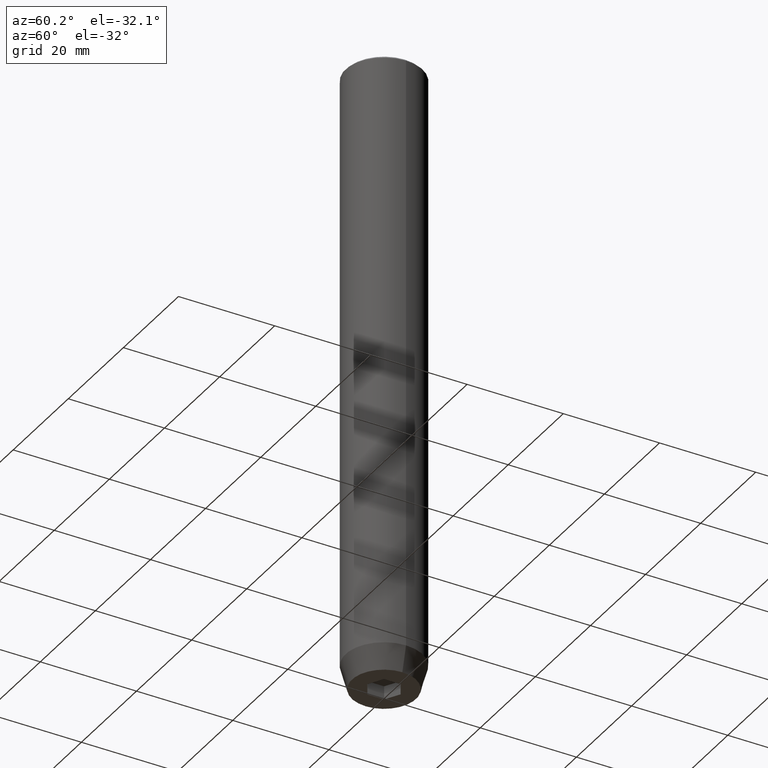
[diagram: clean part render]
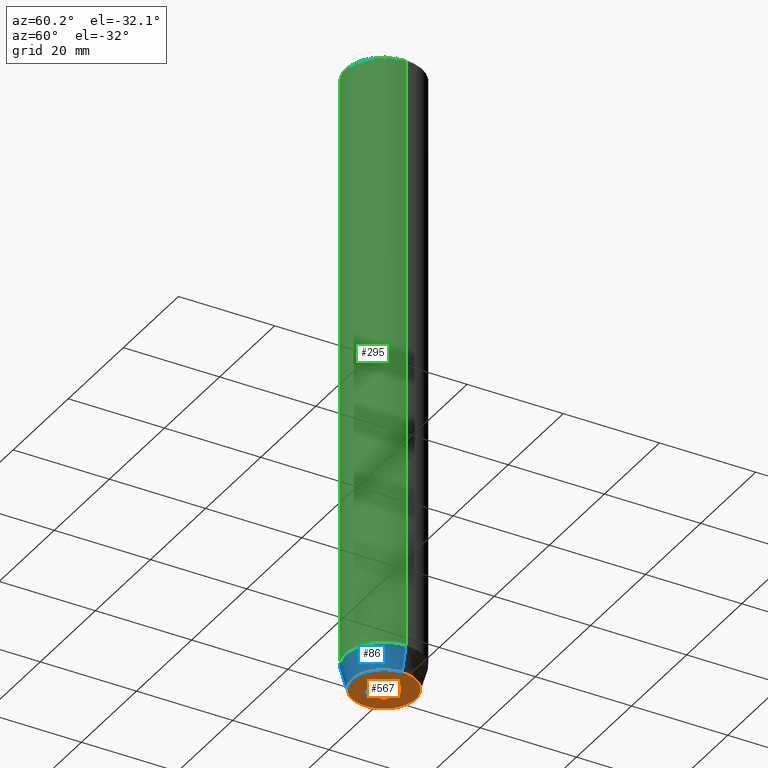
[diagram: same view with three faces highlighted in distinct colors, each labeled with its STEP entity id]
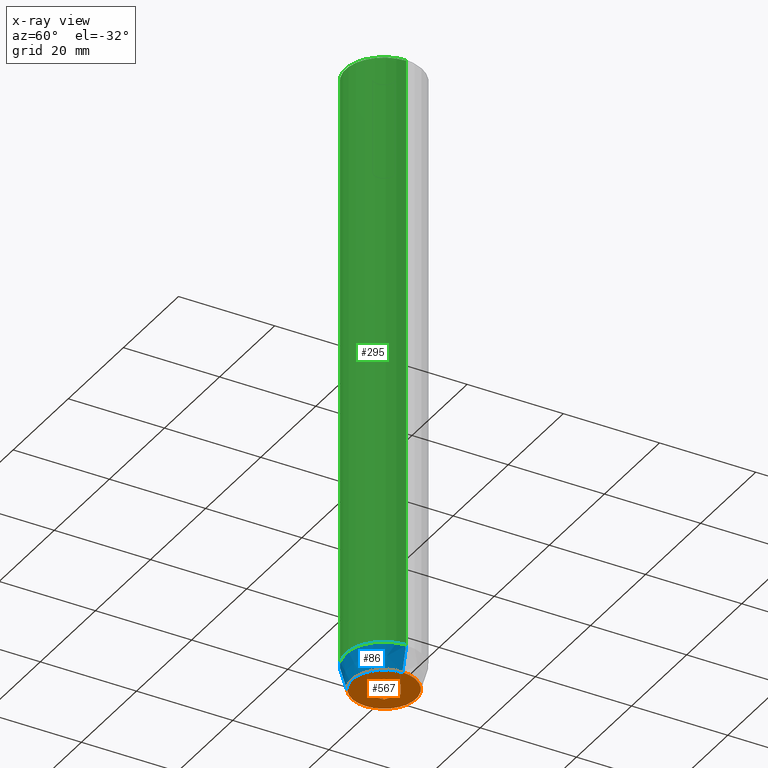
[diagram: x-ray of the same camera — body ghosted, the three highlighted faces saturated]
A machine part, auxiliary view with three faces highlighted in distinct colors.
The next image is the same camera in x-ray (body ghosted, the three faces saturated) — at least one of them is partly hidden behind the body in this view.
Their STEP definitions:

[orange] entity #567 — the highlighted planar face has unit normal (0, 0, -1).
#5 = CARTESIAN_POINT ( 'NONE',  ( 0.000000000000000000, 0.000000000000000000, -130.0000000000000000 ) ) ;
#14 = CARTESIAN_POINT ( 'NONE',  ( -1.499999999999999556, 2.598076211353316012, -130.0000000000000000 ) ) ;
#28 = EDGE_CURVE ( 'NONE', #218, #371, #66, .T. ) ;
#33 = CARTESIAN_POINT ( 'NONE',  ( 3.000000000000000000, 0.000000000000000000, -130.0000000000000000 ) ) ;
#34 = ORIENTED_EDGE ( 'NONE', *, *, #398, .F. ) ;
#43 = DIRECTION ( 'NONE',  ( 1.000000000000000000, 0.000000000000000000, 0.000000000000000000 ) ) ;
#56 = DIRECTION ( 'NONE',  ( -0.000000000000000000, -0.000000000000000000, 1.000000000000000000 ) ) ;
#61 = CARTESIAN_POINT ( 'NONE',  ( 3.000000000000000000, -1.732050807568876527, -130.0000000000000000 ) ) ;
#65 = FACE_OUTER_BOUND ( 'NONE', #581, .T. ) ;
#66 = LINE ( 'NONE', #231, #488 ) ;
#69 = VERTEX_POINT ( 'NONE', #446 ) ;
#75 = LINE ( 'NONE', #508, #500 ) ;
#87 = VECTOR ( 'NONE', #270, 999.9999999999998863 ) ;
#90 = DIRECTION ( 'NONE',  ( -0.8660254037844385966, 0.5000000000000001110, 0.000000000000000000 ) ) ;
#103 = DIRECTION ( 'NONE',  ( 1.000000000000000000, 0.000000000000000000, 0.000000000000000000 ) ) ;
#109 = ORIENTED_EDGE ( 'NONE', *, *, #329, .F. ) ;
#116 = EDGE_CURVE ( 'NONE', #179, #484, #321, .T. ) ;
#143 = CARTESIAN_POINT ( 'NONE',  ( -1.500000000000000666, -2.598076211353316456, -130.0000000000000000 ) ) ;
#144 = ORIENTED_EDGE ( 'NONE', *, *, #28, .F. ) ;
#150 = CARTESIAN_POINT ( 'NONE',  ( 0.000000000000000000, 6.660254037844381969, -130.0000000000000000 ) ) ;
#151 = ORIENTED_EDGE ( 'NONE', *, *, #116, .F. ) ;
#165 = AXIS2_PLACEMENT_3D ( 'NONE', #150, #441, #323 ) ;
#167 = CARTESIAN_POINT ( 'NONE',  ( 3.000000000000000000, 1.732050807568876527, -130.0000000000000000 ) ) ;
#173 = VERTEX_POINT ( 'NONE', #209 ) ;
#179 = VERTEX_POINT ( 'NONE', #167 ) ;
#181 = LINE ( 'NONE', #348, #254 ) ;
#189 = ORIENTED_EDGE ( 'NONE', *, *, #564, .F. ) ;
#191 = LINE ( 'NONE', #14, #87 ) ;
#201 = DIRECTION ( 'NONE',  ( 0.000000000000000000, -1.000000000000000000, 0.000000000000000000 ) ) ;
#209 = CARTESIAN_POINT ( 'NONE',  ( -2.168404344971008868E-16, -3.464101615137754830, -130.0000000000000000 ) ) ;
#218 = VERTEX_POINT ( 'NONE', #382 ) ;
#231 = CARTESIAN_POINT ( 'NONE',  ( -3.000000000000000444, -7.511572993685800087E-16, -130.0000000000000000 ) ) ;
#235 = CIRCLE ( 'NONE', #325, 6.660254037844381969 ) ;
#247 = DIRECTION ( 'NONE',  ( -0.8660254037844385966, -0.5000000000000001110, 0.000000000000000000 ) ) ;
#254 = VECTOR ( 'NONE', #260, 1000.000000000000000 ) ;
#260 = DIRECTION ( 'NONE',  ( 0.8660254037844385966, -0.5000000000000001110, 0.000000000000000000 ) ) ;
#270 = DIRECTION ( 'NONE',  ( 0.8660254037844387076, 0.4999999999999999445, 0.000000000000000000 ) ) ;
#273 = ORIENTED_EDGE ( 'NONE', *, *, #584, .F. ) ;
#279 = EDGE_LOOP ( 'NONE', ( #189, #144, #109, #273, #151, #34 ) ) ;
#289 = VERTEX_POINT ( 'NONE', #461 ) ;
#303 = EDGE_CURVE ( 'NONE', #69, #313, #517, .T. ) ;
#313 = VERTEX_POINT ( 'NONE', #582 ) ;
#321 = LINE ( 'NONE', #33, #390 ) ;
#323 = DIRECTION ( 'NONE',  ( -1.000000000000000000, 0.000000000000000000, -0.000000000000000000 ) ) ;
#325 = AXIS2_PLACEMENT_3D ( 'NONE', #5, #56, #103 ) ;
#329 = EDGE_CURVE ( 'NONE', #173, #218, #344, .T. ) ;
#344 = LINE ( 'NONE', #143, #489 ) ;
#345 = CARTESIAN_POINT ( 'NONE',  ( 0.000000000000000000, 0.000000000000000000, -130.0000000000000000 ) ) ;
#348 = CARTESIAN_POINT ( 'NONE',  ( 1.500000000000000222, 2.598076211353315568, -130.0000000000000000 ) ) ;
#350 = ORIENTED_EDGE ( 'NONE', *, *, #303, .F. ) ;
#364 = FACE_BOUND ( 'NONE', #279, .T. ) ;
#367 = PLANE ( 'NONE',  #165 ) ;
#368 = DIRECTION ( 'NONE',  ( -2.503857664561932376E-16, 1.000000000000000000, 0.000000000000000000 ) ) ;
#371 = VERTEX_POINT ( 'NONE', #473 ) ;
#375 = AXIS2_PLACEMENT_3D ( 'NONE', #345, #522, #43 ) ;
#382 = CARTESIAN_POINT ( 'NONE',  ( -3.000000000000000000, -1.732050807568877859, -130.0000000000000000 ) ) ;
#390 = VECTOR ( 'NONE', #201, 1000.000000000000000 ) ;
#398 = EDGE_CURVE ( 'NONE', #289, #179, #181, .T. ) ;
#441 = DIRECTION ( 'NONE',  ( 0.000000000000000000, 0.000000000000000000, -1.000000000000000000 ) ) ;
#446 = CARTESIAN_POINT ( 'NONE',  ( -6.660254037844381969, 8.976816591066591237E-16, -130.0000000000000000 ) ) ;
#461 = CARTESIAN_POINT ( 'NONE',  ( -2.168404344971008868E-16, 3.464101615137754830, -130.0000000000000000 ) ) ;
#473 = CARTESIAN_POINT ( 'NONE',  ( -3.000000000000000888, 1.732050807568876527, -130.0000000000000000 ) ) ;
#484 = VERTEX_POINT ( 'NONE', #61 ) ;
#488 = VECTOR ( 'NONE', #368, 1000.000000000000000 ) ;
#489 = VECTOR ( 'NONE', #90, 1000.000000000000000 ) ;
#500 = VECTOR ( 'NONE', #247, 1000.000000000000000 ) ;
#508 = CARTESIAN_POINT ( 'NONE',  ( 1.500000000000000222, -2.598076211353315568, -130.0000000000000000 ) ) ;
#511 = EDGE_CURVE ( 'NONE', #313, #69, #235, .T. ) ;
#517 = CIRCLE ( 'NONE', #375, 6.660254037844381969 ) ;
#522 = DIRECTION ( 'NONE',  ( -0.000000000000000000, -0.000000000000000000, 1.000000000000000000 ) ) ;
#533 = ORIENTED_EDGE ( 'NONE', *, *, #511, .F. ) ;
#564 = EDGE_CURVE ( 'NONE', #371, #289, #191, .T. ) ;
#567 = ADVANCED_FACE ( 'NONE', ( #364, #65 ), #367, .T. ) ;
#581 = EDGE_LOOP ( 'NONE', ( #533, #350 ) ) ;
#582 = CARTESIAN_POINT ( 'NONE',  ( 6.660254037844381969, 0.000000000000000000, -130.0000000000000000 ) ) ;
#584 = EDGE_CURVE ( 'NONE', #484, #173, #75, .T. ) ;

[blue] entity #86 — the highlighted conical surface has half-angle 15 deg.
#31 = CONICAL_SURFACE ( 'NONE', #131, 8.000000000000000000, 0.2617993877991500740 ) ;
#43 = DIRECTION ( 'NONE',  ( 1.000000000000000000, 0.000000000000000000, 0.000000000000000000 ) ) ;
#69 = VERTEX_POINT ( 'NONE', #446 ) ;
#79 = VECTOR ( 'NONE', #433, 1000.000000000000000 ) ;
#86 = ADVANCED_FACE ( 'NONE', ( #282 ), #31, .T. ) ;
#97 = EDGE_LOOP ( 'NONE', ( #531, #315, #528, #356 ) ) ;
#131 = AXIS2_PLACEMENT_3D ( 'NONE', #271, #194, #454 ) ;
#152 = VERTEX_POINT ( 'NONE', #555 ) ;
#183 = CARTESIAN_POINT ( 'NONE',  ( -8.000000000000000000, 9.797174393178825657E-16, -125.0000000000000000 ) ) ;
#193 = DIRECTION ( 'NONE',  ( 1.000000000000000000, 0.000000000000000000, 0.000000000000000000 ) ) ;
#194 = DIRECTION ( 'NONE',  ( -0.000000000000000000, -0.000000000000000000, 1.000000000000000000 ) ) ;
#206 = CIRCLE ( 'NONE', #525, 8.000000000000000000 ) ;
#257 = LINE ( 'NONE', #183, #79 ) ;
#271 = CARTESIAN_POINT ( 'NONE',  ( 0.000000000000000000, 0.000000000000000000, -125.0000000000000000 ) ) ;
#281 = CARTESIAN_POINT ( 'NONE',  ( 8.000000000000000000, 0.000000000000000000, -125.0000000000000000 ) ) ;
#282 = FACE_OUTER_BOUND ( 'NONE', #97, .T. ) ;
#303 = EDGE_CURVE ( 'NONE', #69, #313, #517, .T. ) ;
#313 = VERTEX_POINT ( 'NONE', #582 ) ;
#315 = ORIENTED_EDGE ( 'NONE', *, *, #303, .T. ) ;
#342 = EDGE_CURVE ( 'NONE', #69, #152, #257, .T. ) ;
#345 = CARTESIAN_POINT ( 'NONE',  ( 0.000000000000000000, 0.000000000000000000, -130.0000000000000000 ) ) ;
#356 = ORIENTED_EDGE ( 'NONE', *, *, #465, .F. ) ;
#375 = AXIS2_PLACEMENT_3D ( 'NONE', #345, #522, #43 ) ;
#407 = DIRECTION ( 'NONE',  ( -0.000000000000000000, -0.000000000000000000, 1.000000000000000000 ) ) ;
#411 = DIRECTION ( 'NONE',  ( 0.2588190451025213501, 0.000000000000000000, 0.9659258262890680902 ) ) ;
#433 = DIRECTION ( 'NONE',  ( -0.2588190451025213501, 3.169619151431772337E-17, 0.9659258262890680902 ) ) ;
#445 = LINE ( 'NONE', #453, #562 ) ;
#446 = CARTESIAN_POINT ( 'NONE',  ( -6.660254037844381969, 8.976816591066591237E-16, -130.0000000000000000 ) ) ;
#448 = CARTESIAN_POINT ( 'NONE',  ( 0.000000000000000000, 0.000000000000000000, -125.0000000000000000 ) ) ;
#453 = CARTESIAN_POINT ( 'NONE',  ( 8.000000000000000000, 0.000000000000000000, -125.0000000000000000 ) ) ;
#454 = DIRECTION ( 'NONE',  ( 1.000000000000000000, 0.000000000000000000, 0.000000000000000000 ) ) ;
#465 = EDGE_CURVE ( 'NONE', #152, #480, #206, .T. ) ;
#480 = VERTEX_POINT ( 'NONE', #281 ) ;
#517 = CIRCLE ( 'NONE', #375, 6.660254037844381969 ) ;
#522 = DIRECTION ( 'NONE',  ( -0.000000000000000000, -0.000000000000000000, 1.000000000000000000 ) ) ;
#525 = AXIS2_PLACEMENT_3D ( 'NONE', #448, #407, #193 ) ;
#528 = ORIENTED_EDGE ( 'NONE', *, *, #575, .T. ) ;
#531 = ORIENTED_EDGE ( 'NONE', *, *, #342, .F. ) ;
#555 = CARTESIAN_POINT ( 'NONE',  ( -8.000000000000000000, 9.797174393178825657E-16, -125.0000000000000000 ) ) ;
#562 = VECTOR ( 'NONE', #411, 1000.000000000000000 ) ;
#575 = EDGE_CURVE ( 'NONE', #313, #480, #445, .T. ) ;
#582 = CARTESIAN_POINT ( 'NONE',  ( 6.660254037844381969, 0.000000000000000000, -130.0000000000000000 ) ) ;

[green] entity #295 — the highlighted cylindrical surface (partial cylindrical patch) has radius 8 mm, axis along (-0, -0, 1).
#17 = DIRECTION ( 'NONE',  ( -0.000000000000000000, -0.000000000000000000, 1.000000000000000000 ) ) ;
#58 = VERTEX_POINT ( 'NONE', #414 ) ;
#88 = VECTOR ( 'NONE', #17, 1000.000000000000000 ) ;
#125 = CARTESIAN_POINT ( 'NONE',  ( 8.000000000000000000, 0.000000000000000000, 0.000000000000000000 ) ) ;
#134 = FACE_OUTER_BOUND ( 'NONE', #268, .T. ) ;
#152 = VERTEX_POINT ( 'NONE', #555 ) ;
#177 = DIRECTION ( 'NONE',  ( -0.000000000000000000, -0.000000000000000000, 1.000000000000000000 ) ) ;
#184 = VERTEX_POINT ( 'NONE', #207 ) ;
#193 = DIRECTION ( 'NONE',  ( 1.000000000000000000, 0.000000000000000000, 0.000000000000000000 ) ) ;
#198 = DIRECTION ( 'NONE',  ( 0.000000000000000000, 0.000000000000000000, -1.000000000000000000 ) ) ;
#199 = VECTOR ( 'NONE', #421, 1000.000000000000000 ) ;
#206 = CIRCLE ( 'NONE', #525, 8.000000000000000000 ) ;
#207 = CARTESIAN_POINT ( 'NONE',  ( 8.000000000000000000, 0.000000000000000000, -0.4999999999999935052 ) ) ;
#237 = ORIENTED_EDGE ( 'NONE', *, *, #462, .F. ) ;
#246 = EDGE_CURVE ( 'NONE', #480, #184, #559, .T. ) ;
#252 = LINE ( 'NONE', #430, #88 ) ;
#268 = EDGE_LOOP ( 'NONE', ( #237, #436, #447, #568 ) ) ;
#280 = CIRCLE ( 'NONE', #349, 8.000000000000000000 ) ;
#281 = CARTESIAN_POINT ( 'NONE',  ( 8.000000000000000000, 0.000000000000000000, -125.0000000000000000 ) ) ;
#295 = ADVANCED_FACE ( 'NONE', ( #134 ), #388, .T. ) ;
#349 = AXIS2_PLACEMENT_3D ( 'NONE', #547, #198, #549 ) ;
#384 = DIRECTION ( 'NONE',  ( 1.000000000000000000, 0.000000000000000000, 0.000000000000000000 ) ) ;
#386 = CARTESIAN_POINT ( 'NONE',  ( 0.000000000000000000, 0.000000000000000000, 0.000000000000000000 ) ) ;
#388 = CYLINDRICAL_SURFACE ( 'NONE', #476, 8.000000000000000000 ) ;
#407 = DIRECTION ( 'NONE',  ( -0.000000000000000000, -0.000000000000000000, 1.000000000000000000 ) ) ;
#414 = CARTESIAN_POINT ( 'NONE',  ( -8.000000000000000000, 9.797174393178825657E-16, -0.4999999999999935052 ) ) ;
#421 = DIRECTION ( 'NONE',  ( -0.000000000000000000, -0.000000000000000000, 1.000000000000000000 ) ) ;
#430 = CARTESIAN_POINT ( 'NONE',  ( -8.000000000000000000, 9.797174393178825657E-16, 0.000000000000000000 ) ) ;
#436 = ORIENTED_EDGE ( 'NONE', *, *, #465, .T. ) ;
#447 = ORIENTED_EDGE ( 'NONE', *, *, #246, .T. ) ;
#448 = CARTESIAN_POINT ( 'NONE',  ( 0.000000000000000000, 0.000000000000000000, -125.0000000000000000 ) ) ;
#462 = EDGE_CURVE ( 'NONE', #152, #58, #252, .T. ) ;
#465 = EDGE_CURVE ( 'NONE', #152, #480, #206, .T. ) ;
#469 = EDGE_CURVE ( 'NONE', #184, #58, #280, .T. ) ;
#476 = AXIS2_PLACEMENT_3D ( 'NONE', #386, #177, #384 ) ;
#480 = VERTEX_POINT ( 'NONE', #281 ) ;
#525 = AXIS2_PLACEMENT_3D ( 'NONE', #448, #407, #193 ) ;
#547 = CARTESIAN_POINT ( 'NONE',  ( 0.000000000000000000, 0.000000000000000000, -0.4999999999999935052 ) ) ;
#549 = DIRECTION ( 'NONE',  ( 1.000000000000000000, 0.000000000000000000, 0.000000000000000000 ) ) ;
#555 = CARTESIAN_POINT ( 'NONE',  ( -8.000000000000000000, 9.797174393178825657E-16, -125.0000000000000000 ) ) ;
#559 = LINE ( 'NONE', #125, #199 ) ;
#568 = ORIENTED_EDGE ( 'NONE', *, *, #469, .T. ) ;